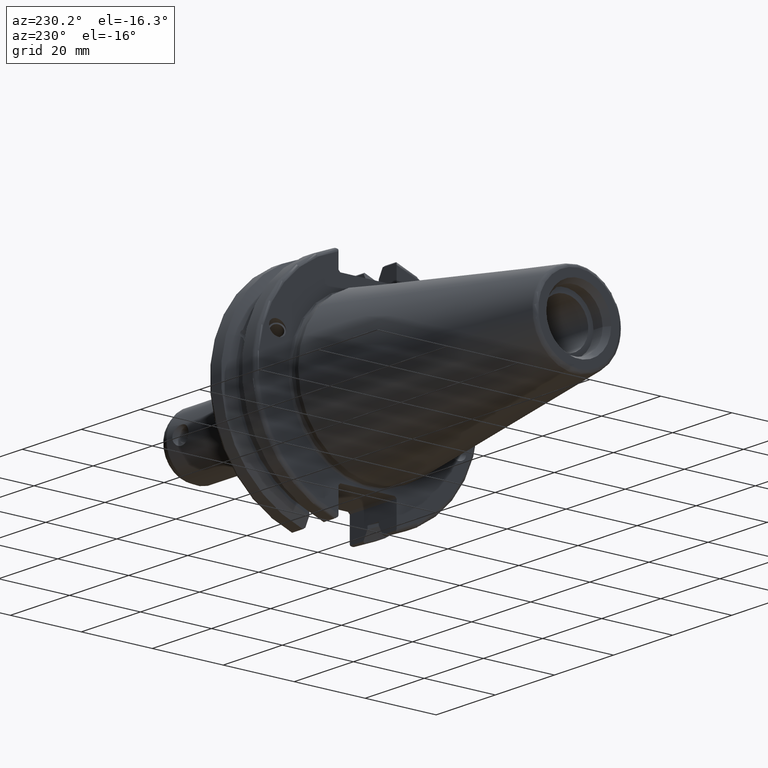
[diagram: clean part render]
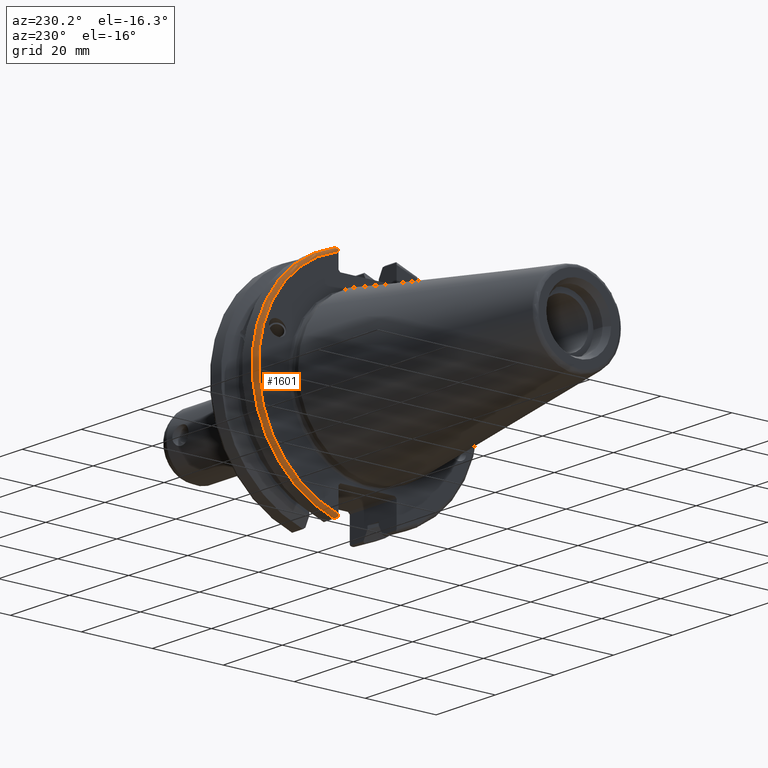
[diagram: same view with one face highlighted and labeled with its STEP entity id]
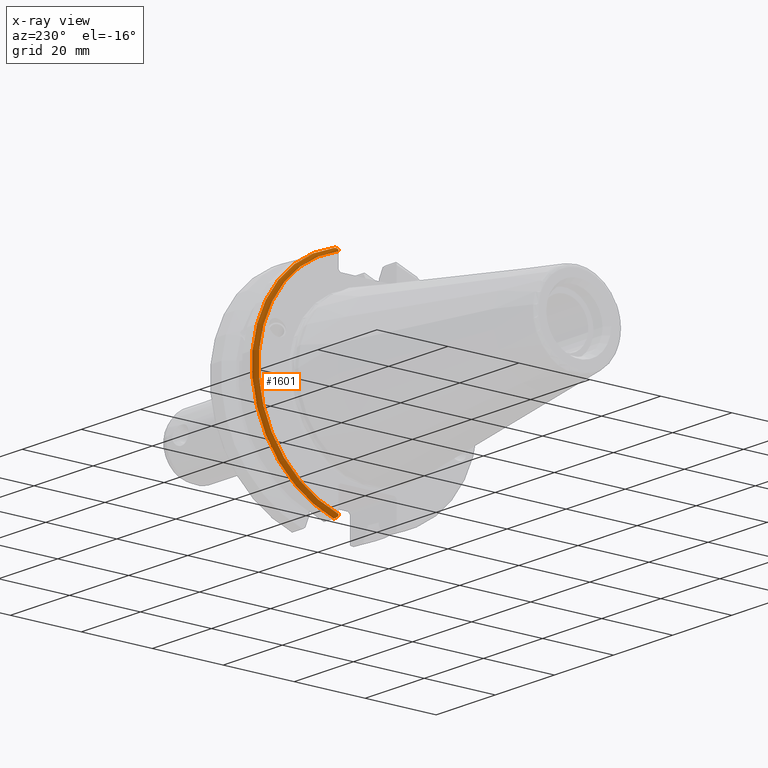
[diagram: x-ray of the same camera — body ghosted, the highlighted face saturated]
A machine part, auxiliary view. The second image highlights one B-rep face of the part: STEP entity #1601.
The next image is the same camera in x-ray: the body ghosted, the highlighted face saturated — about 0% of this face is hidden behind the body in this view.
In plain terms, the highlighted toroidal blend (fillet) surface has major radius 30.75 mm and minor (blend) radius 1 mm.
Its self-contained STEP definition (entity closure, byte-faithful):
#90=B_SPLINE_CURVE_WITH_KNOTS('',3,(#2963,#2964,#2965,#2966,#2967,#2968),
 .UNSPECIFIED.,.F.,.F.,(4,2,4),(0.0977210450333169,0.111963554372601,0.150804064902975),
 .UNSPECIFIED.);
#99=B_SPLINE_CURVE_WITH_KNOTS('',3,(#3080,#3081,#3082,#3083,#3084,#3085,
#3086,#3087),.UNSPECIFIED.,.F.,.F.,(4,2,2,4),(-0.104180282751876,-0.072978474246144,
-0.0343524753874979,0.),.UNSPECIFIED.);
#100=B_SPLINE_CURVE_WITH_KNOTS('',3,(#3090,#3091,#3092,#3093,#3094,#3095,
#3096,#3097),.UNSPECIFIED.,.F.,.F.,(4,2,2,4),(0.,0.0343524753874975,0.0729784742461445,
0.104180282751877),.UNSPECIFIED.);
#101=B_SPLINE_CURVE_WITH_KNOTS('',3,(#3098,#3099,#3100,#3101,#3102,#3103),
 .UNSPECIFIED.,.F.,.F.,(4,2,4),(0.452741154494498,0.491581665024872,0.505824174364157),
 .UNSPECIFIED.);
#425=FACE_OUTER_BOUND('',#527,.T.);
#527=EDGE_LOOP('',(#1386,#1387,#1388,#1389,#1390,#1391));
#618=CIRCLE('',#1775,30.75);
#624=CIRCLE('',#1793,31.75);
#756=VERTEX_POINT('',#2901);
#757=VERTEX_POINT('',#2903);
#769=VERTEX_POINT('',#2962);
#785=VERTEX_POINT('',#3078);
#786=VERTEX_POINT('',#3079);
#787=VERTEX_POINT('',#3088);
#957=EDGE_CURVE('',#757,#756,#618,.T.);
#974=EDGE_CURVE('',#769,#757,#90,.T.);
#1003=EDGE_CURVE('',#785,#786,#99,.T.);
#1004=EDGE_CURVE('',#786,#787,#624,.T.);
#1005=EDGE_CURVE('',#787,#769,#100,.T.);
#1006=EDGE_CURVE('',#756,#785,#101,.T.);
#1386=ORIENTED_EDGE('',*,*,#1003,.T.);
#1387=ORIENTED_EDGE('',*,*,#1004,.T.);
#1388=ORIENTED_EDGE('',*,*,#1005,.T.);
#1389=ORIENTED_EDGE('',*,*,#974,.T.);
#1390=ORIENTED_EDGE('',*,*,#957,.T.);
#1391=ORIENTED_EDGE('',*,*,#1006,.T.);
#1543=TOROIDAL_SURFACE('',#1792,30.75,1.);
#1601=ADVANCED_FACE('',(#425),#1543,.T.);
#1775=AXIS2_PLACEMENT_3D('',#2904,#2133,#2134);
#1792=AXIS2_PLACEMENT_3D('',#3077,#2188,#2189);
#1793=AXIS2_PLACEMENT_3D('',#3089,#2190,#2191);
#2133=DIRECTION('center_axis',(1.,0.,0.));
#2134=DIRECTION('ref_axis',(0.,1.,1.60812264967664E-16));
#2188=DIRECTION('center_axis',(1.,0.,0.));
#2189=DIRECTION('ref_axis',(0.,0.,-1.));
#2190=DIRECTION('center_axis',(-1.,0.,0.));
#2191=DIRECTION('ref_axis',(0.,1.,1.60812264967664E-16));
#2901=CARTESIAN_POINT('',(3.175,8.19,29.6392712461019));
#2903=CARTESIAN_POINT('',(3.175,8.18999999999999,-29.6392712461019));
#2904=CARTESIAN_POINT('Origin',(3.175,0.,0.));
#2962=CARTESIAN_POINT('',(3.31912772509028,8.19,-30.1755016258903));
#2963=CARTESIAN_POINT('Ctrl Pts',(3.31912772509028,8.19,-30.1755016258903));
#2964=CARTESIAN_POINT('Ctrl Pts',(3.29318362718666,8.19,-30.131014531546));
#2965=CARTESIAN_POINT('Ctrl Pts',(3.27103565282437,8.19,-30.0852355256475));
#2966=CARTESIAN_POINT('Ctrl Pts',(3.20451443291695,8.19,-29.9212724384851));
#2967=CARTESIAN_POINT('Ctrl Pts',(3.175,8.19,-29.7687396145364));
#2968=CARTESIAN_POINT('Ctrl Pts',(3.175,8.19,-29.6392712461019));
#3077=CARTESIAN_POINT('Origin',(4.175,0.,0.));
#3078=CARTESIAN_POINT('',(3.31912772509028,8.19,30.1755016258903));
#3079=CARTESIAN_POINT('',(4.175,8.67204822802685,30.5427254764662));
#3080=CARTESIAN_POINT('Ctrl Pts',(3.31912772509028,8.19,30.1755016258903));
#3081=CARTESIAN_POINT('Ctrl Pts',(3.36755369570114,8.2703682833078,30.2367261024977));
#3082=CARTESIAN_POINT('Ctrl Pts',(3.43232973376814,8.34909446036477,30.2966996242308));
#3083=CARTESIAN_POINT('Ctrl Pts',(3.58532758094931,8.48862804755884,30.4029961692546));
#3084=CARTESIAN_POINT('Ctrl Pts',(3.70655857052286,8.56482138642532,30.4610401774263));
#3085=CARTESIAN_POINT('Ctrl Pts',(3.92668295662254,8.6471881193939,30.5237870709558));
#3086=CARTESIAN_POINT('Ctrl Pts',(4.06049174870834,8.67204822802686,30.5427254764662));
#3087=CARTESIAN_POINT('Ctrl Pts',(4.175,8.67204822802686,30.5427254764662));
#3088=CARTESIAN_POINT('',(4.175,8.67204822802685,-30.5427254764662));
#3089=CARTESIAN_POINT('Origin',(4.175,0.,0.));
#3090=CARTESIAN_POINT('Ctrl Pts',(4.175,8.67204822802685,-30.5427254764662));
#3091=CARTESIAN_POINT('Ctrl Pts',(4.06049174870834,8.67204822802685,-30.5427254764662));
#3092=CARTESIAN_POINT('Ctrl Pts',(3.92668295662254,8.6471881193939,-30.5237870709558));
#3093=CARTESIAN_POINT('Ctrl Pts',(3.70655857052286,8.56482138642533,-30.4610401774263));
#3094=CARTESIAN_POINT('Ctrl Pts',(3.58532758094931,8.48862804755884,-30.4029961692546));
#3095=CARTESIAN_POINT('Ctrl Pts',(3.43232973376814,8.34909446036477,-30.2966996242308));
#3096=CARTESIAN_POINT('Ctrl Pts',(3.36755369570113,8.2703682833078,-30.2367261024977));
#3097=CARTESIAN_POINT('Ctrl Pts',(3.31912772509028,8.18999999999999,-30.1755016258903));
#3098=CARTESIAN_POINT('Ctrl Pts',(3.175,8.19,29.6392712461018));
#3099=CARTESIAN_POINT('Ctrl Pts',(3.175,8.19,29.7687396145364));
#3100=CARTESIAN_POINT('Ctrl Pts',(3.20451443291695,8.19,29.9212724384851));
#3101=CARTESIAN_POINT('Ctrl Pts',(3.27103565282437,8.19,30.0852355256475));
#3102=CARTESIAN_POINT('Ctrl Pts',(3.29318362718666,8.19,30.131014531546));
#3103=CARTESIAN_POINT('Ctrl Pts',(3.31912772509028,8.19,30.1755016258903));